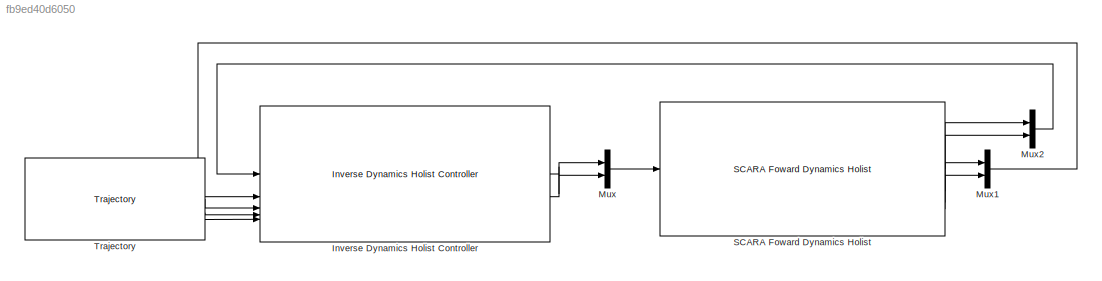
MODEL slx_fb9ed40d6050
KIND model
CONFIG AbsTol = auto
CONFIG EnableMultiTasking = off
CONFIG FixedStep = auto
CONFIG MaxStep = auto
CONFIG MinStep = auto
CONFIG RelTol = 1e-3
CONFIG SampleTimeConstraint = Unconstrained
CONFIG SolverName = VariableStepAuto
CONFIG StartTime = 0.0
CONFIG StopTime = 10.0
BLOCK [Reference] Inverse Dynamics Holist Controller  REF=SCR/Inverse Dynamics Holist Controller
  SourceBlock = SCR/Inverse Dynamics Holist Controller
BLOCK [Mux] Mux
  DisplayOption = bar
  Inputs = 2
BLOCK [Mux] Mux1
  DisplayOption = bar
  Inputs = 2
BLOCK [Mux] Mux2
  DisplayOption = bar
  Inputs = 2
BLOCK [Reference] SCARA Foward Dynamics Holist  REF=SCR/SCARA Foward Dynamics Holist
  SourceBlock = SCR/SCARA Foward Dynamics Holist
BLOCK [Reference] Trajectory  REF=SCR/Trajectory
  SourceBlock = SCR/Trajectory
LINE Inverse Dynamics Holist Controller:1 -> Mux:1
LINE Inverse Dynamics Holist Controller:2 -> Mux:2
LINE Mux1:1 -> Inverse Dynamics Holist Controller:2
LINE Mux2:1 -> Inverse Dynamics Holist Controller:1
LINE Mux:1 -> SCARA Foward Dynamics Holist:1
LINE SCARA Foward Dynamics Holist:1 -> Mux2:1
LINE SCARA Foward Dynamics Holist:2 -> Mux2:2
LINE SCARA Foward Dynamics Holist:3 -> Mux1:1
LINE SCARA Foward Dynamics Holist:4 -> Mux1:2
LINE Trajectory:1 -> Inverse Dynamics Holist Controller:3
LINE Trajectory:2 -> Inverse Dynamics Holist Controller:4
LINE Trajectory:3 -> Inverse Dynamics Holist Controller:5
